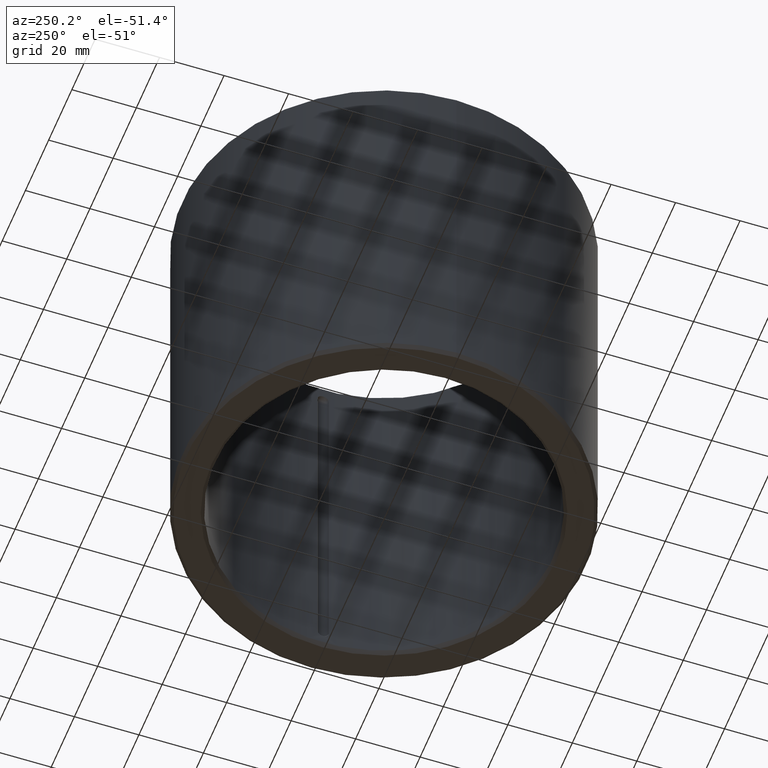
[diagram: clean part render]
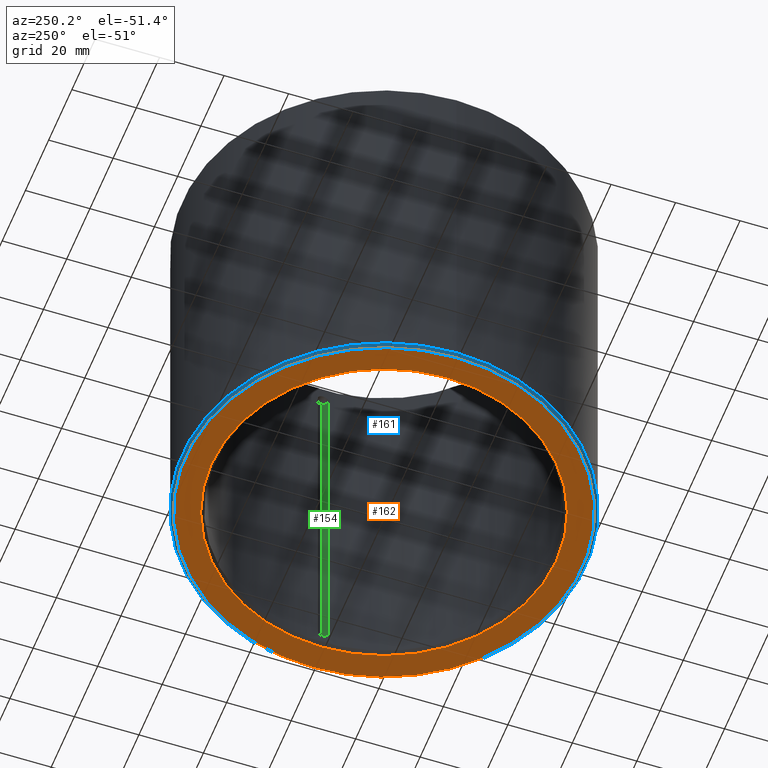
[diagram: same view with three faces highlighted in distinct colors, each labeled with its STEP entity id]
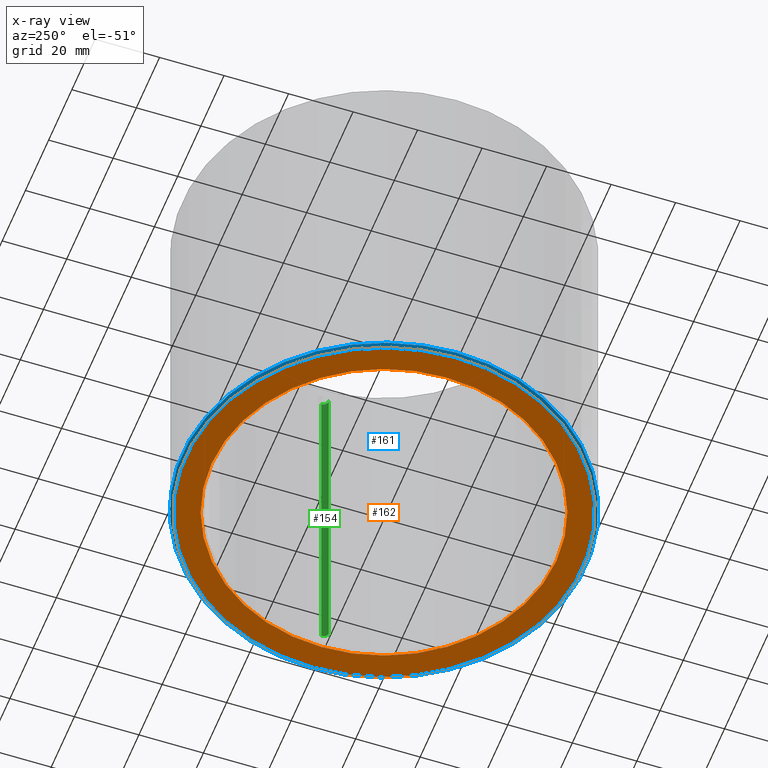
[diagram: x-ray of the same camera — body ghosted, the three highlighted faces saturated]
A machine part, auxiliary view with three faces highlighted in distinct colors.
The next image is the same camera in x-ray (body ghosted, the three faces saturated) — at least one of them is partly hidden behind the body in this view.
Their STEP definitions:

[orange] entity #162 — the highlighted planar face has unit normal (-0, 0, -1).
#162=ADVANCED_FACE('',(#192,#193),#194,.T.);
#192=FACE_OUTER_BOUND('',#2772,.T.);
#193=FACE_BOUND('',#2773,.T.);
#194=PLANE('',#2774);
#2772=EDGE_LOOP('',(#5381));
#2773=EDGE_LOOP('',(#5382));
#2774=AXIS2_PLACEMENT_3D('',#5383,#5384,#5385);
#5381=ORIENTED_EDGE('',*,*,#5418,.T.);
#5382=ORIENTED_EDGE('',*,*,#5419,.F.);
#5383=CARTESIAN_POINT('',(0.0535,0.0,3.30681662608079E-018));
#5384=DIRECTION('',(0.0,-6.12323399573677E-017,-1.0));
#5385=DIRECTION('',(0.0,1.0,-6.12323399573677E-017));
#5418=EDGE_CURVE('',#5452,#5452,#5453,.T.);
#5419=EDGE_CURVE('',#5454,#5454,#5455,.T.);
#5452=VERTEX_POINT('',#5724);
#5453=CIRCLE('',#5725,0.0615);
#5454=VERTEX_POINT('',#5726);
#5455=CIRCLE('',#5727,0.0535);
#5724=CARTESIAN_POINT('',(0.0,0.0615,2.89186963211543E-020));
#5725=AXIS2_PLACEMENT_3D('',#5762,#5763,#5764);
#5726=CARTESIAN_POINT('',(0.0,0.0535,-4.57004539256858E-019));
#5727=AXIS2_PLACEMENT_3D('',#5765,#5766,#5767);
#5762=CARTESIAN_POINT('',(0.0,0.0,3.79470760369927E-018));
#5763=DIRECTION('',(0.0,-6.12323399573677E-017,-1.0));
#5764=DIRECTION('',(0.0,1.0,-6.12323399573677E-017));
#5765=CARTESIAN_POINT('',(0.0,0.0,2.81892564846231E-018));
#5766=DIRECTION('',(0.0,-6.12323399573677E-017,-1.0));
#5767=DIRECTION('',(0.0,1.0,-6.12323399573677E-017));

[blue] entity #161 — the highlighted conical surface has half-angle 45 deg.
#161=ADVANCED_FACE('',(#189,#190),#191,.T.);
#189=FACE_OUTER_BOUND('',#2769,.T.);
#190=FACE_BOUND('',#2770,.T.);
#191=CONICAL_SURFACE('',#2771,0.0615,0.78539816339745);
#2769=EDGE_LOOP('',(#5376));
#2770=EDGE_LOOP('',(#5377));
#2771=AXIS2_PLACEMENT_3D('',#5378,#5379,#5380);
#5376=ORIENTED_EDGE('',*,*,#5417,.T.);
#5377=ORIENTED_EDGE('',*,*,#5418,.F.);
#5378=CARTESIAN_POINT('',(0.0,0.0,3.79470760369927E-018));
#5379=DIRECTION('',(-0.0,6.12323399573677E-017,1.0));
#5380=DIRECTION('',(0.0,-1.0,6.12323399573677E-017));
#5417=EDGE_CURVE('',#5450,#5450,#5451,.T.);
#5418=EDGE_CURVE('',#5452,#5452,#5453,.T.);
#5450=VERTEX_POINT('',#5722);
#5451=CIRCLE('',#5723,0.0625);
#5452=VERTEX_POINT('',#5724);
#5453=CIRCLE('',#5725,0.0615);
#5722=CARTESIAN_POINT('',(0.0,0.0625,0.001));
#5723=AXIS2_PLACEMENT_3D('',#5759,#5760,#5761);
#5724=CARTESIAN_POINT('',(0.0,0.0615,2.89186963211543E-020));
#5725=AXIS2_PLACEMENT_3D('',#5762,#5763,#5764);
#5759=CARTESIAN_POINT('',(0.0,0.0,0.001));
#5760=DIRECTION('',(0.0,-6.12323399573677E-017,-1.0));
#5761=DIRECTION('',(0.0,1.0,-6.12323399573677E-017));
#5762=CARTESIAN_POINT('',(0.0,0.0,3.79470760369927E-018));
#5763=DIRECTION('',(0.0,-6.12323399573677E-017,-1.0));
#5764=DIRECTION('',(0.0,1.0,-6.12323399573677E-017));

[green] entity #154 — the highlighted cylindrical surface (edge-blend (fillet) strip) has radius 1.75 mm, axis along (-0, 0, -1).
#154=ADVANCED_FACE('',(#170),#171,.F.);
#170=FACE_OUTER_BOUND('',#206,.T.);
#171=CYLINDRICAL_SURFACE('',#207,0.00175);
#206=EDGE_LOOP('',(#5334,#5335,#5336,#5337));
#207=AXIS2_PLACEMENT_3D('',#5338,#5339,#5340);
#5334=ORIENTED_EDGE('',*,*,#5404,.T.);
#5335=ORIENTED_EDGE('',*,*,#5405,.F.);
#5336=ORIENTED_EDGE('',*,*,#5406,.F.);
#5337=ORIENTED_EDGE('',*,*,#5407,.F.);
#5338=CARTESIAN_POINT('',(-1.39884161876268E-005,-0.05225,2.89114818275911E-018));
#5339=DIRECTION('',(0.0,-6.12323399573677E-017,-1.0));
#5340=DIRECTION('',(0.0,1.0,-6.12323399573677E-017));
#5404=EDGE_CURVE('',#5428,#5429,#5430,.T.);
#5405=EDGE_CURVE('',#5431,#5429,#5432,.F.);
#5406=EDGE_CURVE('',#5433,#5431,#5434,.T.);
#5407=EDGE_CURVE('',#5428,#5433,#5435,.T.);
#5428=VERTEX_POINT('',#5466);
#5429=VERTEX_POINT('',#5467);
#5430=CIRCLE('',#5468,0.00175);
#5431=VERTEX_POINT('',#5469);
#5432=LINE('',#5470,#5471);
#5433=VERTEX_POINT('',#5472);
#5434=CIRCLE('',#5473,0.00175);
#5435=LINE('',#5474,#5475);
#5466=CARTESIAN_POINT('',(-0.00174999999999992,-0.0524708252269773,0.11425));
#5467=CARTESIAN_POINT('',(-1.39884161876396E-005,-0.054,0.11425));
#5468=AXIS2_PLACEMENT_3D('',#5736,#5737,#5738);
#5469=CARTESIAN_POINT('',(-1.39884161876268E-005,-0.054,0.00575));
#5470=CARTESIAN_POINT('',(-1.39884161876268E-005,-0.054,0.11425));
#5471=VECTOR('',#5739,1.0);
#5472=CARTESIAN_POINT('',(-0.00174999999999991,-0.0524708252269773,0.00575));
#5473=AXIS2_PLACEMENT_3D('',#5740,#5741,#5742);
#5474=CARTESIAN_POINT('',(-0.00174999999999991,-0.0524708252269773,2.89114818275911E-018));
#5475=VECTOR('',#5743,1.0);
#5736=CARTESIAN_POINT('',(-1.39884161876397E-005,-0.05225,0.11425));
#5737=DIRECTION('',(0.0,0.0,1.0));
#5738=DIRECTION('',(1.0,0.0,0.0));
#5739=DIRECTION('',(0.0,0.0,-1.0));
#5740=CARTESIAN_POINT('',(-1.39884161876239E-005,-0.05225,0.00575));
#5741=DIRECTION('',(0.0,0.0,1.0));
#5742=DIRECTION('',(1.0,0.0,0.0));
#5743=DIRECTION('',(0.0,-6.12323399573677E-017,-1.0));